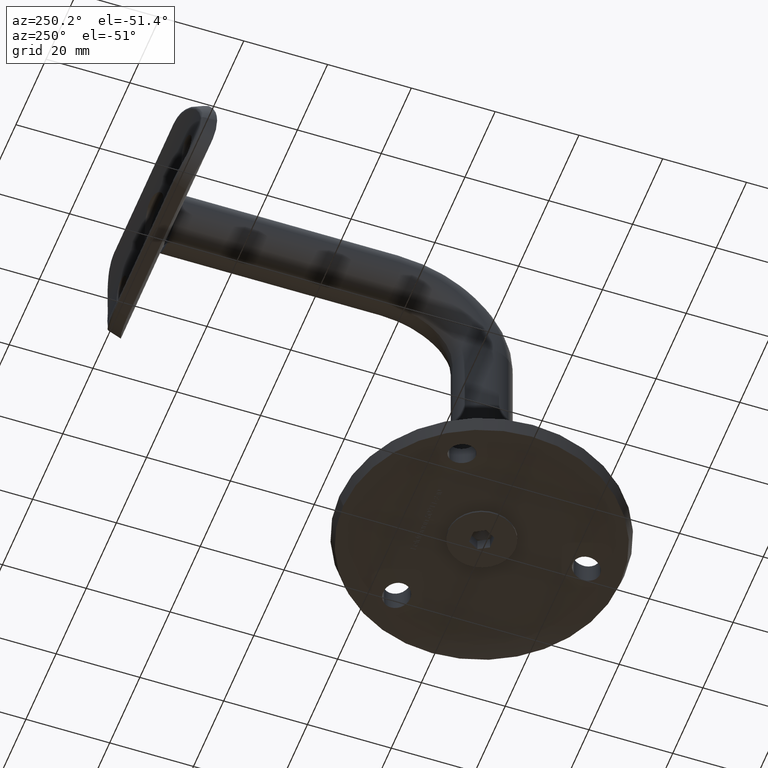
[diagram: clean part render]
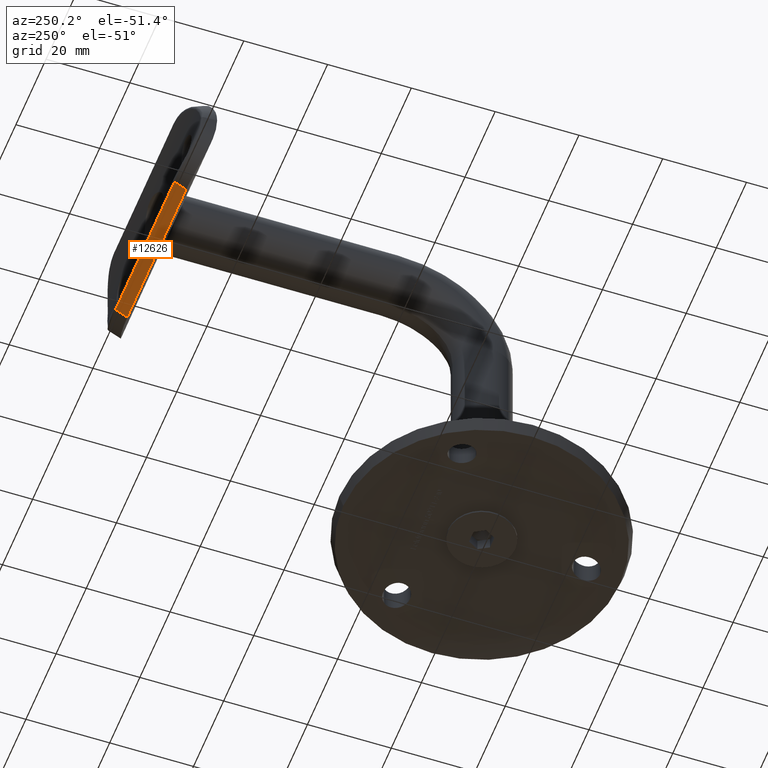
[diagram: same view with one face highlighted and labeled with its STEP entity id]
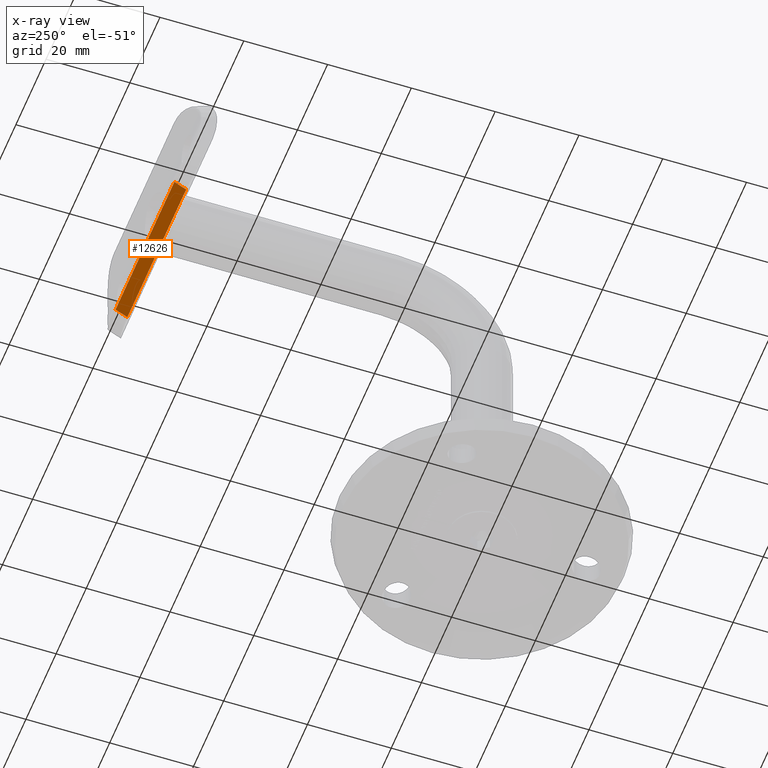
[diagram: x-ray of the same camera — body ghosted, the highlighted face saturated]
A machine part, auxiliary view. The second image highlights one B-rep face of the part: STEP entity #12626.
The next image is the same camera in x-ray: the body ghosted, the highlighted face saturated — about 0% of this face is hidden behind the body in this view.
In plain terms, the highlighted planar face has unit normal (-0, -0.4819, 0.8762).
Its self-contained STEP definition (entity closure, byte-faithful):
#169 = CARTESIAN_POINT ( 'NONE',  ( 10.45505487545766954, 2.191269701761560995, 19.50000000000000000 ) ) ;
#582 = EDGE_CURVE ( 'NONE', #5914, #1958, #16421, .T. ) ;
#834 = CARTESIAN_POINT ( 'NONE',  ( 11.99999999999998224, -0.6176534026920421638, 19.50000000000000000 ) ) ;
#1958 = VERTEX_POINT ( 'NONE', #8658 ) ;
#2522 = LINE ( 'NONE', #8686, #8724 ) ;
#3321 = FACE_OUTER_BOUND ( 'NONE', #9754, .T. ) ;
#4562 = DIRECTION ( 'NONE',  ( -2.169367489357782465E-30, -8.474091755303465534E-33, -1.000000000000000000 ) ) ;
#5914 = VERTEX_POINT ( 'NONE', #834 ) ;
#5982 = DIRECTION ( 'NONE',  ( -0.8762109800277927407, -0.4819277108433742685, -2.169367489357782115E-30 ) ) ;
#6900 = DIRECTION ( 'NONE',  ( -0.4819277108433742685, 0.8762109800277927407, -2.169367489357782465E-30 ) ) ;
#7179 = LINE ( 'NONE', #7438, #9771 ) ;
#7269 = PLANE ( 'NONE',  #13417 ) ;
#7438 = CARTESIAN_POINT ( 'NONE',  ( 11.99999999999998224, -0.6176534026920421638, 19.50000000000000000 ) ) ;
#7715 = CARTESIAN_POINT ( 'NONE',  ( 10.45505487545769796, 2.191269701761547228, -19.50000000000000355 ) ) ;
#7751 = EDGE_CURVE ( 'NONE', #13326, #5914, #7179, .T. ) ;
#8110 = CARTESIAN_POINT ( 'NONE',  ( 11.99999999999999645, -0.6176534026914454190, 31.50000000000000000 ) ) ;
#8497 = ORIENTED_EDGE ( 'NONE', *, *, #7751, .T. ) ;
#8658 = CARTESIAN_POINT ( 'NONE',  ( 12.00000000000001066, -0.6176534026920421638, -19.50000000000000355 ) ) ;
#8686 = CARTESIAN_POINT ( 'NONE',  ( 10.45505487545766954, 2.191269701761560995, 19.50000000000000000 ) ) ;
#8724 = VECTOR ( 'NONE', #9962, 1000.000000000000000 ) ;
#8884 = ORIENTED_EDGE ( 'NONE', *, *, #16317, .T. ) ;
#8928 = EDGE_CURVE ( 'NONE', #1958, #15328, #13219, .T. ) ;
#9754 = EDGE_LOOP ( 'NONE', ( #13480, #8884, #8497, #15253 ) ) ;
#9771 = VECTOR ( 'NONE', #13845, 1000.000000000000000 ) ;
#9962 = DIRECTION ( 'NONE',  ( 2.169367489357782465E-30, 8.474091755303465534E-33, 1.000000000000000000 ) ) ;
#12008 = CARTESIAN_POINT ( 'NONE',  ( 12.00000000000001066, -0.6176534026920421638, -19.50000000000000355 ) ) ;
#12323 = CARTESIAN_POINT ( 'NONE',  ( 11.99999999999999645, -0.6176534026914454190, 31.50000000000000000 ) ) ;
#12392 = VECTOR ( 'NONE', #6900, 1000.000000000000000 ) ;
#12626 = ADVANCED_FACE ( 'NONE', ( #3321 ), #7269, .F. ) ;
#13219 = LINE ( 'NONE', #12008, #12392 ) ;
#13326 = VERTEX_POINT ( 'NONE', #169 ) ;
#13417 = AXIS2_PLACEMENT_3D ( 'NONE', #12323, #5982, #13625 ) ;
#13480 = ORIENTED_EDGE ( 'NONE', *, *, #8928, .T. ) ;
#13625 = DIRECTION ( 'NONE',  ( 0.4819277108433742685, -0.8762109800277927407, 2.169367489357782465E-30 ) ) ;
#13845 = DIRECTION ( 'NONE',  ( 0.4819277108433742685, -0.8762109800277927407, 2.169367489357782465E-30 ) ) ;
#15034 = VECTOR ( 'NONE', #4562, 1000.000000000000000 ) ;
#15253 = ORIENTED_EDGE ( 'NONE', *, *, #582, .T. ) ;
#15328 = VERTEX_POINT ( 'NONE', #7715 ) ;
#16317 = EDGE_CURVE ( 'NONE', #15328, #13326, #2522, .T. ) ;
#16421 = LINE ( 'NONE', #8110, #15034 ) ;